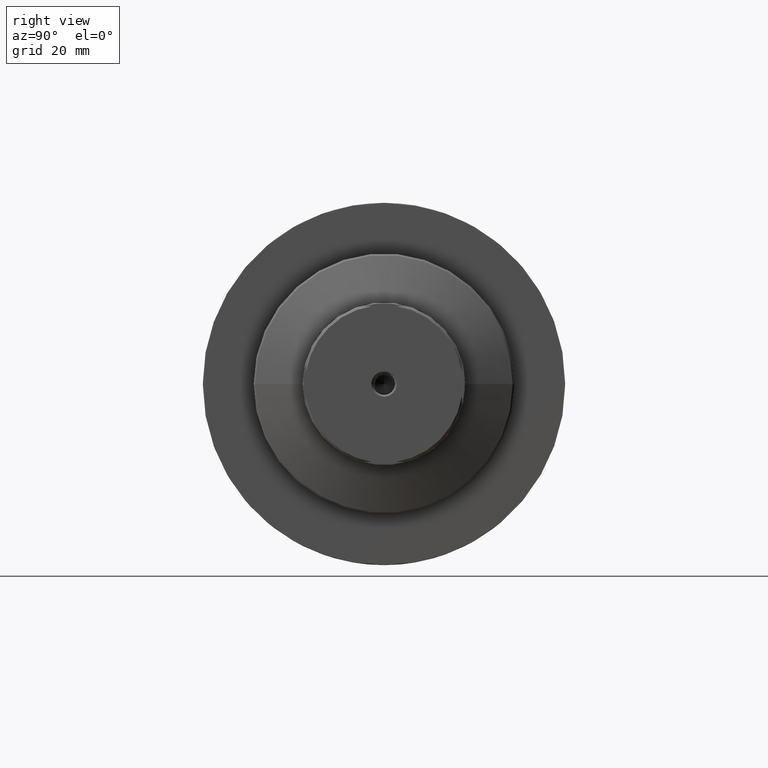
[diagram: clean part render]
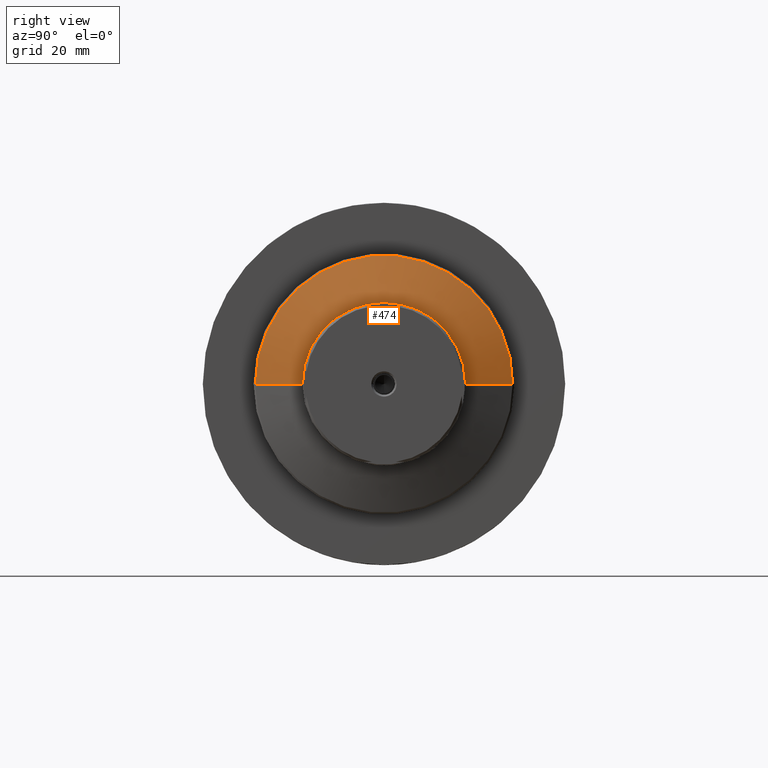
[diagram: same view with one face highlighted and labeled with its STEP entity id]
A machine part, right view. The second image highlights one B-rep face of the part: STEP entity #474.
In plain terms, the highlighted conical surface has half-angle 69.745 deg.
Its self-contained STEP definition (entity closure, byte-faithful):
#92 = ORIENTED_EDGE ( 'NONE', *, *, #615, .T. ) ;
#113 = VERTEX_POINT ( 'NONE', #2071 ) ;
#213 = VERTEX_POINT ( 'NONE', #867 ) ;
#255 = DIRECTION ( 'NONE',  ( 2.312964634635742464E-16, -1.000000000000000000, 0.000000000000000000 ) ) ;
#282 = LINE ( 'NONE', #2095, #2068 ) ;
#373 = ORIENTED_EDGE ( 'NONE', *, *, #1897, .T. ) ;
#386 = CIRCLE ( 'NONE', #1339, 22.50000000000000355 ) ;
#392 = CARTESIAN_POINT ( 'NONE',  ( -13.10000000000066755, -35.49999999999997158, 0.000000000000000000 ) ) ;
#474 = ADVANCED_FACE ( 'NONE', ( #1789 ), #1415, .T. ) ;
#589 = DIRECTION ( 'NONE',  ( -1.000000000000000000, -2.485414848852932351E-16, 0.000000000000000000 ) ) ;
#601 = CARTESIAN_POINT ( 'NONE',  ( -13.10000000000068532, 35.49999999999998579, 4.347496136973100915E-15 ) ) ;
#615 = EDGE_CURVE ( 'NONE', #1681, #2026, #1664, .T. ) ;
#641 = AXIS2_PLACEMENT_3D ( 'NONE', #760, #772, #1105 ) ;
#659 = CARTESIAN_POINT ( 'NONE',  ( -13.10000000000066755, -35.49999999999997158, 0.000000000000000000 ) ) ;
#732 = VERTEX_POINT ( 'NONE', #1687 ) ;
#737 = CARTESIAN_POINT ( 'NONE',  ( -13.10000000000067644, 4.269948368855093225E-15, 0.000000000000000000 ) ) ;
#760 = CARTESIAN_POINT ( 'NONE',  ( -13.10000000000067644, 4.269948368855093225E-15, 0.000000000000000000 ) ) ;
#767 = EDGE_LOOP ( 'NONE', ( #373, #969, #875, #92, #1643 ) ) ;
#772 = DIRECTION ( 'NONE',  ( 1.000000000000000000, 2.485414848852932351E-16, -0.000000000000000000 ) ) ;
#803 = CIRCLE ( 'NONE', #1525, 22.50000000000000355 ) ;
#814 = DIRECTION ( 'NONE',  ( -0.3461951801534135509, 0.9381625111027117603, 1.148917716301979285E-16 ) ) ;
#829 = EDGE_CURVE ( 'NONE', #113, #213, #386, .T. ) ;
#848 = DIRECTION ( 'NONE',  ( -0.3461951801534130513, -0.9381625111027118713, 0.000000000000000000 ) ) ;
#867 = CARTESIAN_POINT ( 'NONE',  ( -8.302816901408890615, 22.50000000000001066, 3.551475717527323241E-15 ) ) ;
#875 = ORIENTED_EDGE ( 'NONE', *, *, #1731, .T. ) ;
#969 = ORIENTED_EDGE ( 'NONE', *, *, #829, .T. ) ;
#1017 = CARTESIAN_POINT ( 'NONE',  ( -8.302816901408885286, 5.462247379445728618E-15, 0.000000000000000000 ) ) ;
#1105 = DIRECTION ( 'NONE',  ( -2.443272501375785946E-16, 1.000000000000000000, 0.000000000000000000 ) ) ;
#1224 = LINE ( 'NONE', #659, #2111 ) ;
#1335 = AXIS2_PLACEMENT_3D ( 'NONE', #737, #1728, #1600 ) ;
#1339 = AXIS2_PLACEMENT_3D ( 'NONE', #1017, #1522, #255 ) ;
#1415 = CONICAL_SURFACE ( 'NONE', #1335, 35.49999999999997868, 1.217283882111194204 ) ;
#1507 = DIRECTION ( 'NONE',  ( 2.312964634635742464E-16, -1.000000000000000000, 0.000000000000000000 ) ) ;
#1522 = DIRECTION ( 'NONE',  ( -1.000000000000000000, -2.485414848852932351E-16, 0.000000000000000000 ) ) ;
#1525 = AXIS2_PLACEMENT_3D ( 'NONE', #1873, #589, #1507 ) ;
#1600 = DIRECTION ( 'NONE',  ( 2.443272501375785946E-16, -1.000000000000000000, 0.000000000000000000 ) ) ;
#1643 = ORIENTED_EDGE ( 'NONE', *, *, #1701, .F. ) ;
#1664 = CIRCLE ( 'NONE', #641, 35.49999999999997868 ) ;
#1681 = VERTEX_POINT ( 'NONE', #601 ) ;
#1687 = CARTESIAN_POINT ( 'NONE',  ( -8.302816901408881733, -22.49999999999999645, 0.000000000000000000 ) ) ;
#1701 = EDGE_CURVE ( 'NONE', #732, #2026, #1224, .T. ) ;
#1728 = DIRECTION ( 'NONE',  ( -1.000000000000000000, -2.485414848852932351E-16, 0.000000000000000000 ) ) ;
#1731 = EDGE_CURVE ( 'NONE', #213, #1681, #282, .T. ) ;
#1789 = FACE_OUTER_BOUND ( 'NONE', #767, .T. ) ;
#1873 = CARTESIAN_POINT ( 'NONE',  ( -8.302816901408885286, 5.462247379445728618E-15, 0.000000000000000000 ) ) ;
#1897 = EDGE_CURVE ( 'NONE', #732, #113, #803, .T. ) ;
#2026 = VERTEX_POINT ( 'NONE', #392 ) ;
#2068 = VECTOR ( 'NONE', #814, 999.9999999999998863 ) ;
#2071 = CARTESIAN_POINT ( 'NONE',  ( -8.302816901408885286, 2.755455298081545172E-15, 22.50000000000000355 ) ) ;
#2095 = CARTESIAN_POINT ( 'NONE',  ( -13.10000000000068532, 35.49999999999998579, 4.347496136973100915E-15 ) ) ;
#2111 = VECTOR ( 'NONE', #848, 1000.000000000000000 ) ;